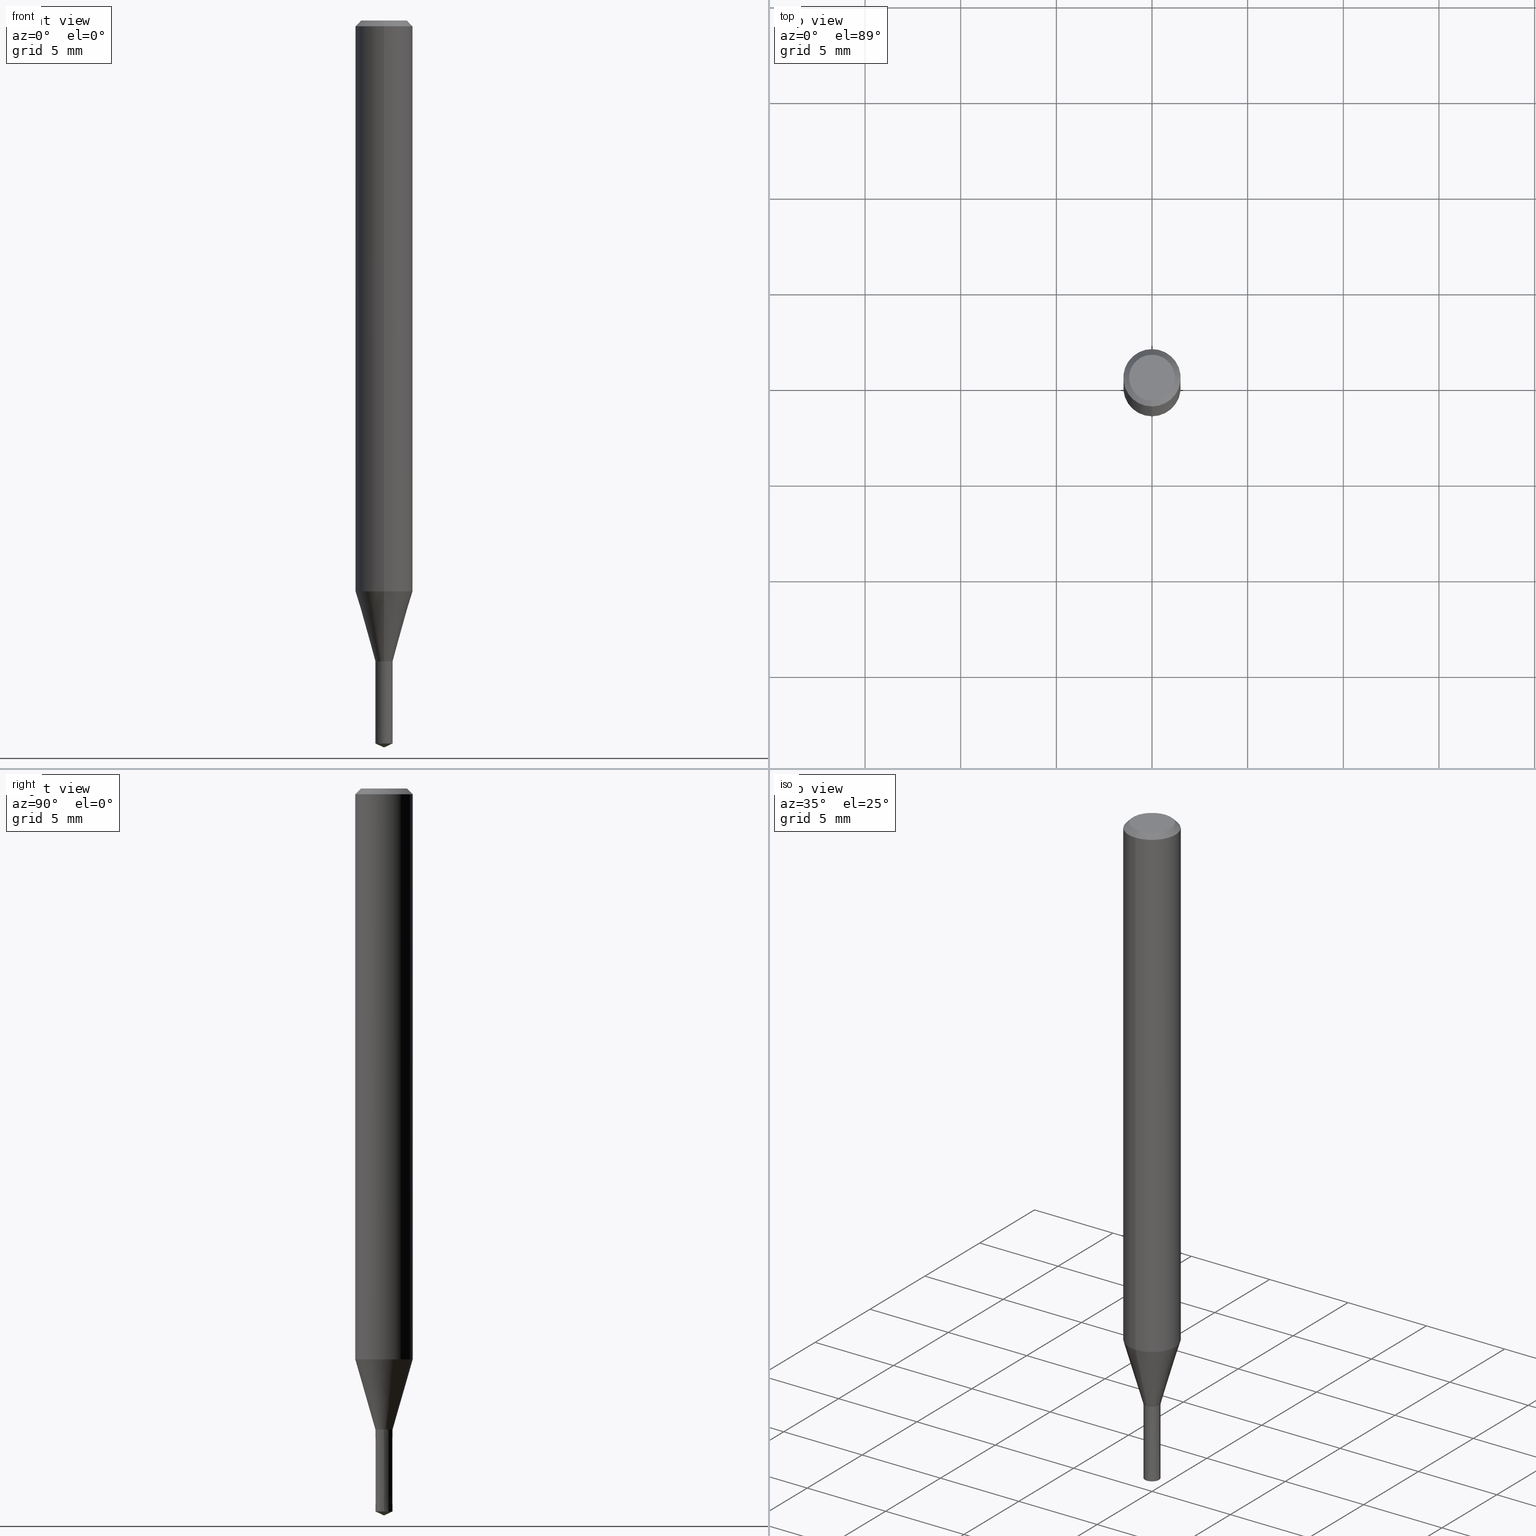
[diagram: canonical four-view strip — front | top / right | iso, engineering-drawing reading convention]
A machine part, canonical four-view strip (front | top / right | iso — engineering-drawing reading convention). The complete STEP part file that produces these views, byte-faithful:
ISO-10303-21;
HEADER;
FILE_DESCRIPTION(('no description'),'unknown implementation level');
FILE_NAME('UTDSX2090-045-Huellk.stp','  ',('CIMSOURCE GmbH'),('CADClick - KiM GmbH - www.kimweb.de'),'unknown preprocess','ACIS','unknown authorization');
FILE_SCHEMA(('automotive_design'));
ENDSEC;
DATA;
#1=MECHANICAL_DESIGN_GEOMETRIC_PRESENTATION_REPRESENTATION(' ',(#14,#15,#16,#17,#18,#19,#20,#21,#22,#23,#24,#25,#26,#27,#28,#29,#30,#31,#32,#33,#34,#35,#36,#37,#38,#39,#40,#41,#42,#43,#44,#45,#46,#47,#48,#49,#50,#51,#52,#53,#54,#55,#56,#57,#58,#59,#60,#61,#62,#63,#64,#65,#66,#67,#68,#69,#70,#71),#10);
#2=PRODUCT_DEFINITION_CONTEXT('',#72,'design');
#3=APPLICATION_PROTOCOL_DEFINITION('INTERNATIONAL STANDARD','automotive_design',1994,#72);
#4=PRODUCT_CATEGORY_RELATIONSHIP('NONE','NONE',#73,#74);
#5=SHAPE_DEFINITION_REPRESENTATION(#75,#76);
#6=PRODUCT_DEFINITION_CONTEXT('',#77,'design');
#7=APPLICATION_PROTOCOL_DEFINITION('INTERNATIONAL STANDARD','automotive_design',1994,#77);
#8=PRODUCT_CATEGORY_RELATIONSHIP('NONE','NONE',#78,#79);
#9=SHAPE_DEFINITION_REPRESENTATION(#80,#81);
#10= (GEOMETRIC_REPRESENTATION_CONTEXT(3)GLOBAL_UNCERTAINTY_ASSIGNED_CONTEXT((#84))GLOBAL_UNIT_ASSIGNED_CONTEXT((#86,#87,#88))REPRESENTATION_CONTEXT('NONE','WORKSPACE'));
#14=STYLED_ITEM('',(#90),#91);
#15=STYLED_ITEM('',(#92),#93);
#16=STYLED_ITEM('',(#94),#95);
#17=STYLED_ITEM('',(#96),#97);
#18=STYLED_ITEM('',(#98),#99);
#19=STYLED_ITEM('',(#100),#101);
#20=STYLED_ITEM('',(#102),#103);
#21=STYLED_ITEM('',(#104),#105);
#22=STYLED_ITEM('',(#106),#107);
#23=STYLED_ITEM('',(#108),#109);
#24=STYLED_ITEM('',(#110),#111);
#25=STYLED_ITEM('',(#112),#113);
#26=STYLED_ITEM('',(#114),#115);
#27=STYLED_ITEM('',(#116),#117);
#28=STYLED_ITEM('',(#118),#119);
#29=STYLED_ITEM('',(#120),#121);
#30=STYLED_ITEM('',(#122),#123);
#31=STYLED_ITEM('',(#124),#125);
#32=STYLED_ITEM('',(#126),#127);
#33=STYLED_ITEM('',(#128),#129);
#34=STYLED_ITEM('',(#130),#131);
#35=STYLED_ITEM('',(#132),#133);
#36=STYLED_ITEM('',(#134),#135);
#37=STYLED_ITEM('',(#136),#137);
#38=STYLED_ITEM('',(#138),#139);
#39=STYLED_ITEM('',(#140),#141);
#40=STYLED_ITEM('',(#142),#143);
#41=STYLED_ITEM('',(#144),#145);
#42=STYLED_ITEM('',(#146),#147);
#43=STYLED_ITEM('',(#148),#149);
#44=STYLED_ITEM('',(#150),#151);
#45=STYLED_ITEM('',(#152),#153);
#46=STYLED_ITEM('',(#154),#155);
#47=STYLED_ITEM('',(#156),#157);
#48=STYLED_ITEM('',(#158),#159);
#49=STYLED_ITEM('',(#160),#161);
#50=STYLED_ITEM('',(#162),#163);
#51=STYLED_ITEM('',(#164),#165);
#52=STYLED_ITEM('',(#166),#167);
#53=STYLED_ITEM('',(#168),#169);
#54=STYLED_ITEM('',(#170),#171);
#55=STYLED_ITEM('',(#172),#173);
#56=STYLED_ITEM('',(#174),#175);
#57=STYLED_ITEM('',(#176),#177);
#58=STYLED_ITEM('',(#178),#179);
#59=STYLED_ITEM('',(#180),#181);
#60=STYLED_ITEM('',(#182),#183);
#61=STYLED_ITEM('',(#184),#185);
#62=STYLED_ITEM('',(#186),#187);
#63=STYLED_ITEM('',(#188),#189);
#64=STYLED_ITEM('',(#190),#191);
#65=STYLED_ITEM('',(#192),#193);
#66=STYLED_ITEM('',(#194),#195);
#67=STYLED_ITEM('',(#196),#197);
#68=STYLED_ITEM('',(#198),#199);
#69=STYLED_ITEM('',(#200),#201);
#70=STYLED_ITEM('',(#202),#203);
#71=STYLED_ITEM('',(#204),#205);
#72=APPLICATION_CONTEXT(' ');
#73=PRODUCT_CATEGORY('part','NONE');
#74=PRODUCT_RELATED_PRODUCT_CATEGORY('detail',' ',(#206));
#75=PRODUCT_DEFINITION_SHAPE('NONE','NONE',#207);
#76=ADVANCED_BREP_SHAPE_REPRESENTATION('1',(#99,#208),#10);
#77=APPLICATION_CONTEXT(' ');
#78=PRODUCT_CATEGORY('part','NONE');
#79=PRODUCT_RELATED_PRODUCT_CATEGORY('detail',' ',(#209));
#80=PRODUCT_DEFINITION_SHAPE('NONE','NONE',#210);
#81=ADVANCED_BREP_SHAPE_REPRESENTATION('2',(#143,#211),#10);
#84=UNCERTAINTY_MEASURE_WITH_UNIT(LENGTH_MEASURE(1.0E-006),#86,'','');
#86= (CONVERSION_BASED_UNIT('MILLIMETRE',#214)LENGTH_UNIT()NAMED_UNIT(#217));
#87= (NAMED_UNIT(#219)PLANE_ANGLE_UNIT()SI_UNIT($,.RADIAN.));
#88= (NAMED_UNIT(#219)SOLID_ANGLE_UNIT()SI_UNIT($,.STERADIAN.));
#90=PRESENTATION_STYLE_ASSIGNMENT((#225));
#91=VERTEX_POINT('',#226);
#92=PRESENTATION_STYLE_ASSIGNMENT((#227));
#93=EDGE_CURVE('',#191,#115,#228,.T.);
#94=PRESENTATION_STYLE_ASSIGNMENT((#229));
#95=EDGE_CURVE('',#191,#105,#230,.T.);
#96=PRESENTATION_STYLE_ASSIGNMENT((#231));
#97=VERTEX_POINT('',#232);
#98=PRESENTATION_STYLE_ASSIGNMENT((#233));
#99=MANIFOLD_SOLID_BREP('1',#234);
#100=PRESENTATION_STYLE_ASSIGNMENT((#235));
#101=EDGE_CURVE('',#125,#145,#236,.T.);
#102=PRESENTATION_STYLE_ASSIGNMENT((#237));
#103=EDGE_CURVE('',#105,#191,#238,.T.);
#104=PRESENTATION_STYLE_ASSIGNMENT((#239));
#105=VERTEX_POINT('',#240);
#106=PRESENTATION_STYLE_ASSIGNMENT((#241));
#107=EDGE_CURVE('',#97,#123,#242,.T.);
#108=PRESENTATION_STYLE_ASSIGNMENT((#243));
#109=VERTEX_POINT('',#244);
#110=PRESENTATION_STYLE_ASSIGNMENT((#245));
#111=EDGE_CURVE('',#115,#189,#246,.T.);
#112=PRESENTATION_STYLE_ASSIGNMENT((#247));
#113=EDGE_CURVE('',#123,#167,#248,.T.);
#114=PRESENTATION_STYLE_ASSIGNMENT((#249));
#115=VERTEX_POINT('',#250);
#116=PRESENTATION_STYLE_ASSIGNMENT((#251));
#117=EDGE_CURVE('',#167,#123,#252,.T.);
#118=PRESENTATION_STYLE_ASSIGNMENT((#253));
#119=ADVANCED_FACE('',(#254),#255,.T.);
#120=PRESENTATION_STYLE_ASSIGNMENT((#256));
#121=ADVANCED_FACE('',(#257),#258,.T.);
#122=PRESENTATION_STYLE_ASSIGNMENT((#259));
#123=VERTEX_POINT('',#260);
#124=PRESENTATION_STYLE_ASSIGNMENT((#261));
#125=VERTEX_POINT('',#262);
#126=PRESENTATION_STYLE_ASSIGNMENT((#263));
#127=EDGE_CURVE('',#125,#141,#264,.T.);
#128=PRESENTATION_STYLE_ASSIGNMENT((#265));
#129=EDGE_CURVE('',#183,#145,#266,.T.);
#130=PRESENTATION_STYLE_ASSIGNMENT((#267));
#131=VERTEX_POINT('',#268);
#132=PRESENTATION_STYLE_ASSIGNMENT((#269));
#133=EDGE_CURVE('',#131,#91,#270,.T.);
#134=PRESENTATION_STYLE_ASSIGNMENT((#271));
#135=ADVANCED_FACE('',(#272),#273,.T.);
#136=PRESENTATION_STYLE_ASSIGNMENT((#274));
#137=ADVANCED_FACE('',(#275),#276,.T.);
#138=PRESENTATION_STYLE_ASSIGNMENT((#277));
#139=EDGE_CURVE('',#153,#109,#278,.T.);
#140=PRESENTATION_STYLE_ASSIGNMENT((#279));
#141=VERTEX_POINT('',#280);
#142=PRESENTATION_STYLE_ASSIGNMENT((#281));
#143=MANIFOLD_SOLID_BREP('2',#282);
#144=PRESENTATION_STYLE_ASSIGNMENT((#283));
#145=VERTEX_POINT('',#284);
#146=PRESENTATION_STYLE_ASSIGNMENT((#285));
#147=EDGE_CURVE('',#141,#125,#286,.T.);
#148=PRESENTATION_STYLE_ASSIGNMENT((#287));
#149=ADVANCED_FACE('',(#288),#289,.T.);
#150=PRESENTATION_STYLE_ASSIGNMENT((#290));
#151=EDGE_CURVE('',#145,#91,#291,.T.);
#152=PRESENTATION_STYLE_ASSIGNMENT((#292));
#153=VERTEX_POINT('',#293);
#154=PRESENTATION_STYLE_ASSIGNMENT((#294));
#155=EDGE_CURVE('',#91,#131,#295,.T.);
#156=PRESENTATION_STYLE_ASSIGNMENT((#296));
#157=ADVANCED_FACE('',(#297),#298,.T.);
#158=PRESENTATION_STYLE_ASSIGNMENT((#299));
#159=ADVANCED_FACE('',(#300),#301,.T.);
#160=PRESENTATION_STYLE_ASSIGNMENT((#302));
#161=EDGE_CURVE('',#183,#141,#303,.T.);
#162=PRESENTATION_STYLE_ASSIGNMENT((#304));
#163=EDGE_CURVE('',#131,#183,#305,.T.);
#164=PRESENTATION_STYLE_ASSIGNMENT((#306));
#165=ADVANCED_FACE('',(#307),#308,.T.);
#166=PRESENTATION_STYLE_ASSIGNMENT((#309));
#167=VERTEX_POINT('',#310);
#168=PRESENTATION_STYLE_ASSIGNMENT((#311));
#169=EDGE_CURVE('',#109,#167,#312,.T.);
#170=PRESENTATION_STYLE_ASSIGNMENT((#313));
#171=EDGE_CURVE('',#189,#115,#314,.T.);
#172=PRESENTATION_STYLE_ASSIGNMENT((#315));
#173=ADVANCED_FACE('',(#316),#317,.T.);
#174=PRESENTATION_STYLE_ASSIGNMENT((#318));
#175=ADVANCED_FACE('',(#319),#320,.T.);
#176=PRESENTATION_STYLE_ASSIGNMENT((#321));
#177=EDGE_CURVE('',#109,#153,#322,.T.);
#178=PRESENTATION_STYLE_ASSIGNMENT((#323));
#179=ADVANCED_FACE('',(#324),#325,.T.);
#180=PRESENTATION_STYLE_ASSIGNMENT((#326));
#181=ADVANCED_FACE('',(#327),#328,.T.);
#182=PRESENTATION_STYLE_ASSIGNMENT((#329));
#183=VERTEX_POINT('',#330);
#184=PRESENTATION_STYLE_ASSIGNMENT((#331));
#185=ADVANCED_FACE('',(#332),#333,.T.);
#186=PRESENTATION_STYLE_ASSIGNMENT((#334));
#187=EDGE_CURVE('',#123,#153,#335,.T.);
#188=PRESENTATION_STYLE_ASSIGNMENT((#336));
#189=VERTEX_POINT('',#337);
#190=PRESENTATION_STYLE_ASSIGNMENT((#338));
#191=VERTEX_POINT('',#339);
#192=PRESENTATION_STYLE_ASSIGNMENT((#340));
#193=ADVANCED_FACE('',(#341),#342,.T.);
#194=PRESENTATION_STYLE_ASSIGNMENT((#343));
#195=EDGE_CURVE('',#141,#189,#344,.T.);
#196=PRESENTATION_STYLE_ASSIGNMENT((#345));
#197=EDGE_CURVE('',#167,#97,#346,.T.);
#198=PRESENTATION_STYLE_ASSIGNMENT((#347));
#199=EDGE_CURVE('',#115,#125,#348,.T.);
#200=PRESENTATION_STYLE_ASSIGNMENT((#349));
#201=EDGE_CURVE('',#145,#183,#350,.T.);
#202=PRESENTATION_STYLE_ASSIGNMENT((#351));
#203=EDGE_CURVE('',#189,#105,#352,.T.);
#204=PRESENTATION_STYLE_ASSIGNMENT((#353));
#205=ADVANCED_FACE('',(#354),#355,.T.);
#206=PRODUCT('1','1','PART-1-DESC',(#356));
#207=PRODUCT_DEFINITION('NONE','NONE',#357,#2);
#208=AXIS2_PLACEMENT_3D('',#358,#359,#360);
#209=PRODUCT('2','2','PART-2-DESC',(#361));
#210=PRODUCT_DEFINITION('NONE','NONE',#362,#6);
#211=AXIS2_PLACEMENT_3D('',#363,#364,#365);
#214=LENGTH_MEASURE_WITH_UNIT(LENGTH_MEASURE(1.0),#366);
#217=DIMENSIONAL_EXPONENTS(1.0,0.0,0.0,0.0,0.0,0.0,0.0);
#219=DIMENSIONAL_EXPONENTS(0.0,0.0,0.0,0.0,0.0,0.0,0.0);
#225=POINT_STYLE(' ',#367,POSITIVE_LENGTH_MEASURE(1.0E-006),#368);
#226=CARTESIAN_POINT('',(0.0,0.4505,-33.5));
#227=CURVE_STYLE('',#369,POSITIVE_LENGTH_MEASURE(1.0E-006),#370);
#228=LINE('',#371,#372);
#229=CURVE_STYLE('',#373,POSITIVE_LENGTH_MEASURE(1.0E-006),#374);
#230=CIRCLE('',#375,1.2);
#231=POINT_STYLE(' ',#376,POSITIVE_LENGTH_MEASURE(1.0E-006),#377);
#232=CARTESIAN_POINT('',(0.0,0.0,-38.0));
#233=SURFACE_STYLE_USAGE(.BOTH.,#378);
#234=CLOSED_SHELL('',(#157,#135,#181,#193,#205,#149,#185,#137,#173,#121));
#235=CURVE_STYLE('',#379,POSITIVE_LENGTH_MEASURE(1.0E-006),#380);
#236=LINE('',#381,#382);
#237=CURVE_STYLE('',#383,POSITIVE_LENGTH_MEASURE(1.0E-006),#384);
#238=CIRCLE('',#385,1.2);
#239=POINT_STYLE(' ',#386,POSITIVE_LENGTH_MEASURE(1.0E-006),#387);
#240=CARTESIAN_POINT('',(1.46952762458685E-016,-1.2,0.0));
#241=CURVE_STYLE('',#388,POSITIVE_LENGTH_MEASURE(1.0E-006),#389);
#242=LINE('',#390,#391);
#243=POINT_STYLE(' ',#392,POSITIVE_LENGTH_MEASURE(1.0E-006),#393);
#244=CARTESIAN_POINT('',(-0.451,0.0,-33.5));
#245=CURVE_STYLE('',#394,POSITIVE_LENGTH_MEASURE(1.0E-006),#395);
#246=CIRCLE('',#396,1.5);
#247=CURVE_STYLE('',#397,POSITIVE_LENGTH_MEASURE(1.0E-006),#398);
#248=CIRCLE('',#399,0.45);
#249=POINT_STYLE(' ',#400,POSITIVE_LENGTH_MEASURE(1.0E-006),#401);
#250=CARTESIAN_POINT('',(0.0,1.5,-0.300000000000001));
#251=CURVE_STYLE('',#402,POSITIVE_LENGTH_MEASURE(1.0E-006),#403);
#252=CIRCLE('',#404,0.45);
#253=SURFACE_STYLE_USAGE(.BOTH.,#405);
#254=FACE_OUTER_BOUND('',#406,.T.);
#255=CONICAL_SURFACE('',#407,0.4505,0.000233091451274011);
#256=SURFACE_STYLE_USAGE(.BOTH.,#408);
#257=FACE_OUTER_BOUND('',#409,.T.);
#258=PLANE('',#410);
#259=POINT_STYLE(' ',#411,POSITIVE_LENGTH_MEASURE(1.0E-006),#412);
#260=CARTESIAN_POINT('',(0.45,5.5107285922007E-017,-37.79016155));
#261=POINT_STYLE(' ',#413,POSITIVE_LENGTH_MEASURE(1.0E-006),#414);
#262=CARTESIAN_POINT('',(0.0,1.5,-29.838));
#263=CURVE_STYLE('',#415,POSITIVE_LENGTH_MEASURE(1.0E-006),#416);
#264=CIRCLE('',#417,1.5);
#265=CURVE_STYLE('',#418,POSITIVE_LENGTH_MEASURE(1.0E-006),#419);
#266=CIRCLE('',#420,0.45);
#267=POINT_STYLE(' ',#421,POSITIVE_LENGTH_MEASURE(1.0E-006),#422);
#268=CARTESIAN_POINT('',(5.51685162396981E-017,-0.4505,-33.5));
#269=CURVE_STYLE('',#423,POSITIVE_LENGTH_MEASURE(1.0E-006),#424);
#270=CIRCLE('',#425,0.4505);
#271=SURFACE_STYLE_USAGE(.BOTH.,#426);
#272=FACE_OUTER_BOUND('',#427,.T.);
#273=CONICAL_SURFACE('',#428,0.975,0.27929980700525);
#274=SURFACE_STYLE_USAGE(.BOTH.,#429);
#275=FACE_OUTER_BOUND('',#430,.T.);
#276=CONICAL_SURFACE('',#431,0.975,0.27929980700525);
#277=CURVE_STYLE('',#432,POSITIVE_LENGTH_MEASURE(1.0E-006),#433);
#278=CIRCLE('',#434,0.451);
#279=POINT_STYLE(' ',#435,POSITIVE_LENGTH_MEASURE(1.0E-006),#436);
#280=CARTESIAN_POINT('',(1.83690953073357E-016,-1.5,-29.838));
#281=SURFACE_STYLE_USAGE(.BOTH.,#437);
#282=CLOSED_SHELL('',(#159,#179,#165,#119,#175));
#283=POINT_STYLE(' ',#438,POSITIVE_LENGTH_MEASURE(1.0E-006),#439);
#284=CARTESIAN_POINT('',(0.0,0.45,-33.4991339745962));
#285=CURVE_STYLE('',#440,POSITIVE_LENGTH_MEASURE(1.0E-006),#441);
#286=CIRCLE('',#442,1.5);
#287=SURFACE_STYLE_USAGE(.BOTH.,#443);
#288=FACE_OUTER_BOUND('',#444,.T.);
#289=CONICAL_SURFACE('',#445,1.35,0.785398163397447);
#290=CURVE_STYLE('',#446,POSITIVE_LENGTH_MEASURE(1.0E-006),#447);
#291=LINE('',#448,#449);
#292=POINT_STYLE(' ',#450,POSITIVE_LENGTH_MEASURE(1.0E-006),#451);
#293=CARTESIAN_POINT('',(0.451,5.52297465573892E-017,-33.5));
#294=CURVE_STYLE('',#452,POSITIVE_LENGTH_MEASURE(1.0E-006),#453);
#295=CIRCLE('',#454,0.4505);
#296=SURFACE_STYLE_USAGE(.BOTH.,#455);
#297=FACE_OUTER_BOUND('',#456,.T.);
#298=CONICAL_SURFACE('',#457,0.45025,0.523598775598408);
#299=SURFACE_STYLE_USAGE(.BOTH.,#458);
#300=FACE_OUTER_BOUND('',#459,.T.);
#301=CONICAL_SURFACE('',#460,0.225,1.13446400680488);
#302=CURVE_STYLE('',#461,POSITIVE_LENGTH_MEASURE(1.0E-006),#462);
#303=LINE('',#463,#464);
#304=CURVE_STYLE('',#465,POSITIVE_LENGTH_MEASURE(1.0E-006),#466);
#305=LINE('',#467,#468);
#306=SURFACE_STYLE_USAGE(.BOTH.,#469);
#307=FACE_OUTER_BOUND('',#470,.T.);
#308=PLANE('',#471);
#309=POINT_STYLE(' ',#472,POSITIVE_LENGTH_MEASURE(1.0E-006),#473);
#310=CARTESIAN_POINT('',(-0.45,0.0,-37.79016155));
#311=CURVE_STYLE('',#474,POSITIVE_LENGTH_MEASURE(1.0E-006),#475);
#312=LINE('',#476,#477);
#313=CURVE_STYLE('',#478,POSITIVE_LENGTH_MEASURE(1.0E-006),#479);
#314=CIRCLE('',#480,1.5);
#315=SURFACE_STYLE_USAGE(.BOTH.,#481);
#316=FACE_OUTER_BOUND('',#482,.T.);
#317=CONICAL_SURFACE('',#483,0.45025,0.523598775598408);
#318=SURFACE_STYLE_USAGE(.BOTH.,#484);
#319=FACE_OUTER_BOUND('',#485,.T.);
#320=CONICAL_SURFACE('',#486,0.225,1.13446400680488);
#321=CURVE_STYLE('',#487,POSITIVE_LENGTH_MEASURE(1.0E-006),#488);
#322=CIRCLE('',#489,0.451);
#323=SURFACE_STYLE_USAGE(.BOTH.,#490);
#324=FACE_OUTER_BOUND('',#491,.T.);
#325=CONICAL_SURFACE('',#492,0.4505,0.000233091451274011);
#326=SURFACE_STYLE_USAGE(.BOTH.,#493);
#327=FACE_OUTER_BOUND('',#494,.T.);
#328=CYLINDRICAL_SURFACE('',#495,1.5);
#329=POINT_STYLE(' ',#496,POSITIVE_LENGTH_MEASURE(1.0E-006),#497);
#330=CARTESIAN_POINT('',(5.5107285922007E-017,-0.45,-33.4991339745962));
#331=SURFACE_STYLE_USAGE(.BOTH.,#498);
#332=FACE_OUTER_BOUND('',#499,.T.);
#333=CYLINDRICAL_SURFACE('',#500,1.5);
#334=CURVE_STYLE('',#501,POSITIVE_LENGTH_MEASURE(1.0E-006),#502);
#335=LINE('',#503,#504);
#336=POINT_STYLE(' ',#505,POSITIVE_LENGTH_MEASURE(1.0E-006),#506);
#337=CARTESIAN_POINT('',(1.83690953073357E-016,-1.5,-0.300000000000001));
#338=POINT_STYLE(' ',#507,POSITIVE_LENGTH_MEASURE(1.0E-006),#508);
#339=CARTESIAN_POINT('',(0.0,1.2,0.0));
#340=SURFACE_STYLE_USAGE(.BOTH.,#509);
#341=FACE_OUTER_BOUND('',#510,.T.);
#342=CONICAL_SURFACE('',#511,1.35,0.785398163397447);
#343=CURVE_STYLE('',#512,POSITIVE_LENGTH_MEASURE(1.0E-006),#513);
#344=LINE('',#514,#515);
#345=CURVE_STYLE('',#516,POSITIVE_LENGTH_MEASURE(1.0E-006),#517);
#346=LINE('',#518,#519);
#347=CURVE_STYLE('',#520,POSITIVE_LENGTH_MEASURE(1.0E-006),#521);
#348=LINE('',#522,#523);
#349=CURVE_STYLE('',#524,POSITIVE_LENGTH_MEASURE(1.0E-006),#525);
#350=CIRCLE('',#526,0.45);
#351=CURVE_STYLE('',#527,POSITIVE_LENGTH_MEASURE(1.0E-006),#528);
#352=LINE('',#529,#530);
#353=SURFACE_STYLE_USAGE(.BOTH.,#531);
#354=FACE_OUTER_BOUND('',#532,.T.);
#355=PLANE('',#533);
#356=PRODUCT_CONTEXT('',#72,'mechanical');
#357=PRODUCT_DEFINITION_FORMATION_WITH_SPECIFIED_SOURCE(' ','NONE',#206,.NOT_KNOWN.);
#358=CARTESIAN_POINT('',(0.0,0.0,0.0));
#359=DIRECTION('',(0.0,0.0,1.0));
#360=DIRECTION('',(1.0,0.0,0.0));
#361=PRODUCT_CONTEXT('',#77,'mechanical');
#362=PRODUCT_DEFINITION_FORMATION_WITH_SPECIFIED_SOURCE(' ','NONE',#209,.NOT_KNOWN.);
#363=CARTESIAN_POINT('',(0.0,0.0,0.0));
#364=DIRECTION('',(0.0,0.0,1.0));
#365=DIRECTION('',(1.0,0.0,0.0));
#366= (NAMED_UNIT(#217)LENGTH_UNIT()SI_UNIT(.MILLI.,.METRE.));
#367=PRE_DEFINED_MARKER('');
#368=COLOUR_RGB('',0.498039215803146,0.498039215803146,0.498039215803146);
#369=DRAUGHTING_PRE_DEFINED_CURVE_FONT('continuous');
#370=COLOUR_RGB('',0.498039215803146,0.498039215803146,0.498039215803146);
#371=CARTESIAN_POINT('',(-1.65321857766021E-016,1.35,-0.149999999999999));
#372=VECTOR('',#535,1.0);
#373=DRAUGHTING_PRE_DEFINED_CURVE_FONT('continuous');
#374=COLOUR_RGB('',0.498039215803146,0.498039215803146,0.498039215803146);
#375=AXIS2_PLACEMENT_3D('',#536,#537,#538);
#376=PRE_DEFINED_MARKER('');
#377=COLOUR_RGB('',0.800000011920929,0.800000011920929,0.800000011920929);
#378=SURFACE_SIDE_STYLE('',(#539));
#379=DRAUGHTING_PRE_DEFINED_CURVE_FONT('continuous');
#380=COLOUR_RGB('',0.498039215803146,0.498039215803146,0.498039215803146);
#381=CARTESIAN_POINT('',(-1.19399119497682E-016,0.975,-31.6685669872981));
#382=VECTOR('',#540,1.0);
#383=DRAUGHTING_PRE_DEFINED_CURVE_FONT('continuous');
#384=COLOUR_RGB('',0.498039215803146,0.498039215803146,0.498039215803146);
#385=AXIS2_PLACEMENT_3D('',#541,#542,#543);
#386=PRE_DEFINED_MARKER('');
#387=COLOUR_RGB('',0.498039215803146,0.498039215803146,0.498039215803146);
#388=DRAUGHTING_PRE_DEFINED_CURVE_FONT('continuous');
#389=COLOUR_RGB('',0.800000011920929,0.800000011920929,0.800000011920929);
#390=CARTESIAN_POINT('',(0.225,2.75536429610035E-017,-37.895080775));
#391=VECTOR('',#544,1.0);
#392=PRE_DEFINED_MARKER('');
#393=COLOUR_RGB('',0.800000011920929,0.800000011920929,0.800000011920929);
#394=DRAUGHTING_PRE_DEFINED_CURVE_FONT('continuous');
#395=COLOUR_RGB('',0.498039215803146,0.498039215803146,0.498039215803146);
#396=AXIS2_PLACEMENT_3D('',#545,#546,#547);
#397=DRAUGHTING_PRE_DEFINED_CURVE_FONT('continuous');
#398=COLOUR_RGB('',0.800000011920929,0.800000011920929,0.800000011920929);
#399=AXIS2_PLACEMENT_3D('',#548,#549,#550);
#400=PRE_DEFINED_MARKER('');
#401=COLOUR_RGB('',0.498039215803146,0.498039215803146,0.498039215803146);
#402=DRAUGHTING_PRE_DEFINED_CURVE_FONT('continuous');
#403=COLOUR_RGB('',0.800000011920929,0.800000011920929,0.800000011920929);
#404=AXIS2_PLACEMENT_3D('',#551,#552,#553);
#405=SURFACE_SIDE_STYLE('',(#554));
#406=EDGE_LOOP('',(#555,#556,#557,#558));
#407=AXIS2_PLACEMENT_3D('',#559,#560,#561);
#408=SURFACE_SIDE_STYLE('',(#562));
#409=EDGE_LOOP('',(#563,#564));
#410=AXIS2_PLACEMENT_3D('',#565,#566,#567);
#411=PRE_DEFINED_MARKER('');
#412=COLOUR_RGB('',0.800000011920929,0.800000011920929,0.800000011920929);
#413=PRE_DEFINED_MARKER('');
#414=COLOUR_RGB('',0.498039215803146,0.498039215803146,0.498039215803146);
#415=DRAUGHTING_PRE_DEFINED_CURVE_FONT('continuous');
#416=COLOUR_RGB('',0.498039215803146,0.498039215803146,0.498039215803146);
#417=AXIS2_PLACEMENT_3D('',#568,#569,#570);
#418=DRAUGHTING_PRE_DEFINED_CURVE_FONT('continuous');
#419=COLOUR_RGB('',0.498039215803146,0.498039215803146,0.498039215803146);
#420=AXIS2_PLACEMENT_3D('',#571,#572,#573);
#421=PRE_DEFINED_MARKER('');
#422=COLOUR_RGB('',0.498039215803146,0.498039215803146,0.498039215803146);
#423=DRAUGHTING_PRE_DEFINED_CURVE_FONT('continuous');
#424=COLOUR_RGB('',0.498039215803146,0.498039215803146,0.498039215803146);
#425=AXIS2_PLACEMENT_3D('',#574,#575,#576);
#426=SURFACE_SIDE_STYLE('',(#577));
#427=EDGE_LOOP('',(#578,#579,#580,#581));
#428=AXIS2_PLACEMENT_3D('',#582,#583,#584);
#429=SURFACE_SIDE_STYLE('',(#585));
#430=EDGE_LOOP('',(#586,#587,#588,#589));
#431=AXIS2_PLACEMENT_3D('',#590,#591,#592);
#432=DRAUGHTING_PRE_DEFINED_CURVE_FONT('continuous');
#433=COLOUR_RGB('',0.800000011920929,0.800000011920929,0.800000011920929);
#434=AXIS2_PLACEMENT_3D('',#593,#594,#595);
#435=PRE_DEFINED_MARKER('');
#436=COLOUR_RGB('',0.498039215803146,0.498039215803146,0.498039215803146);
#437=SURFACE_SIDE_STYLE('',(#596));
#438=PRE_DEFINED_MARKER('');
#439=COLOUR_RGB('',0.498039215803146,0.498039215803146,0.498039215803146);
#440=DRAUGHTING_PRE_DEFINED_CURVE_FONT('continuous');
#441=COLOUR_RGB('',0.498039215803146,0.498039215803146,0.498039215803146);
#442=AXIS2_PLACEMENT_3D('',#597,#598,#599);
#443=SURFACE_SIDE_STYLE('',(#600));
#444=EDGE_LOOP('',(#601,#602,#603,#604));
#445=AXIS2_PLACEMENT_3D('',#605,#606,#607);
#446=DRAUGHTING_PRE_DEFINED_CURVE_FONT('continuous');
#447=COLOUR_RGB('',0.498039215803146,0.498039215803146,0.498039215803146);
#448=CARTESIAN_POINT('',(-5.51379010808525E-017,0.45025,-33.4995669872981));
#449=VECTOR('',#608,1.0);
#450=PRE_DEFINED_MARKER('');
#451=COLOUR_RGB('',0.800000011920929,0.800000011920929,0.800000011920929);
#452=DRAUGHTING_PRE_DEFINED_CURVE_FONT('continuous');
#453=COLOUR_RGB('',0.498039215803146,0.498039215803146,0.498039215803146);
#454=AXIS2_PLACEMENT_3D('',#609,#610,#611);
#455=SURFACE_SIDE_STYLE('',(#612));
#456=EDGE_LOOP('',(#613,#614,#615,#616));
#457=AXIS2_PLACEMENT_3D('',#617,#618,#619);
#458=SURFACE_SIDE_STYLE('',(#620));
#459=EDGE_LOOP('',(#621,#622,#623));
#460=AXIS2_PLACEMENT_3D('',#624,#625,#626);
#461=DRAUGHTING_PRE_DEFINED_CURVE_FONT('continuous');
#462=COLOUR_RGB('',0.498039215803146,0.498039215803146,0.498039215803146);
#463=CARTESIAN_POINT('',(1.19399119497682E-016,-0.975,-31.6685669872981));
#464=VECTOR('',#627,1.0);
#465=DRAUGHTING_PRE_DEFINED_CURVE_FONT('continuous');
#466=COLOUR_RGB('',0.498039215803146,0.498039215803146,0.498039215803146);
#467=CARTESIAN_POINT('',(5.51379010808525E-017,-0.45025,-33.4995669872981));
#468=VECTOR('',#628,1.0);
#469=SURFACE_SIDE_STYLE('',(#629));
#470=EDGE_LOOP('',(#630,#631));
#471=AXIS2_PLACEMENT_3D('',#632,#633,#634);
#472=PRE_DEFINED_MARKER('');
#473=COLOUR_RGB('',0.800000011920929,0.800000011920929,0.800000011920929);
#474=DRAUGHTING_PRE_DEFINED_CURVE_FONT('continuous');
#475=COLOUR_RGB('',0.800000011920929,0.800000011920929,0.800000011920929);
#476=CARTESIAN_POINT('',(-0.4505,-5.51685162396981E-017,-35.645080775));
#477=VECTOR('',#635,1.0);
#478=DRAUGHTING_PRE_DEFINED_CURVE_FONT('continuous');
#479=COLOUR_RGB('',0.498039215803146,0.498039215803146,0.498039215803146);
#480=AXIS2_PLACEMENT_3D('',#636,#637,#638);
#481=SURFACE_SIDE_STYLE('',(#639));
#482=EDGE_LOOP('',(#640,#641,#642,#643));
#483=AXIS2_PLACEMENT_3D('',#644,#645,#646);
#484=SURFACE_SIDE_STYLE('',(#647));
#485=EDGE_LOOP('',(#648,#649,#650));
#486=AXIS2_PLACEMENT_3D('',#651,#652,#653);
#487=DRAUGHTING_PRE_DEFINED_CURVE_FONT('continuous');
#488=COLOUR_RGB('',0.800000011920929,0.800000011920929,0.800000011920929);
#489=AXIS2_PLACEMENT_3D('',#654,#655,#656);
#490=SURFACE_SIDE_STYLE('',(#657));
#491=EDGE_LOOP('',(#658,#659,#660,#661));
#492=AXIS2_PLACEMENT_3D('',#662,#663,#664);
#493=SURFACE_SIDE_STYLE('',(#665));
#494=EDGE_LOOP('',(#666,#667,#668,#669));
#495=AXIS2_PLACEMENT_3D('',#670,#671,#672);
#496=PRE_DEFINED_MARKER('');
#497=COLOUR_RGB('',0.498039215803146,0.498039215803146,0.498039215803146);
#498=SURFACE_SIDE_STYLE('',(#673));
#499=EDGE_LOOP('',(#674,#675,#676,#677));
#500=AXIS2_PLACEMENT_3D('',#678,#679,#680);
#501=DRAUGHTING_PRE_DEFINED_CURVE_FONT('continuous');
#502=COLOUR_RGB('',0.800000011920929,0.800000011920929,0.800000011920929);
#503=CARTESIAN_POINT('',(0.4505,5.51685162396981E-017,-35.645080775));
#504=VECTOR('',#681,1.0);
#505=PRE_DEFINED_MARKER('');
#506=COLOUR_RGB('',0.498039215803146,0.498039215803146,0.498039215803146);
#507=PRE_DEFINED_MARKER('');
#508=COLOUR_RGB('',0.498039215803146,0.498039215803146,0.498039215803146);
#509=SURFACE_SIDE_STYLE('',(#682));
#510=EDGE_LOOP('',(#683,#684,#685,#686));
#511=AXIS2_PLACEMENT_3D('',#687,#688,#689);
#512=DRAUGHTING_PRE_DEFINED_CURVE_FONT('continuous');
#513=COLOUR_RGB('',0.498039215803146,0.498039215803146,0.498039215803146);
#514=CARTESIAN_POINT('',(1.83690953073357E-016,-1.5,-15.069));
#515=VECTOR('',#690,1.0);
#516=DRAUGHTING_PRE_DEFINED_CURVE_FONT('continuous');
#517=COLOUR_RGB('',0.800000011920929,0.800000011920929,0.800000011920929);
#518=CARTESIAN_POINT('',(-0.225,-2.75536429610035E-017,-37.895080775));
#519=VECTOR('',#691,1.0);
#520=DRAUGHTING_PRE_DEFINED_CURVE_FONT('continuous');
#521=COLOUR_RGB('',0.498039215803146,0.498039215803146,0.498039215803146);
#522=CARTESIAN_POINT('',(-1.83690953073357E-016,1.5,-15.069));
#523=VECTOR('',#692,1.0);
#524=DRAUGHTING_PRE_DEFINED_CURVE_FONT('continuous');
#525=COLOUR_RGB('',0.498039215803146,0.498039215803146,0.498039215803146);
#526=AXIS2_PLACEMENT_3D('',#693,#694,#695);
#527=DRAUGHTING_PRE_DEFINED_CURVE_FONT('continuous');
#528=COLOUR_RGB('',0.498039215803146,0.498039215803146,0.498039215803146);
#529=CARTESIAN_POINT('',(1.65321857766021E-016,-1.35,-0.149999999999999));
#530=VECTOR('',#696,1.0);
#531=SURFACE_SIDE_STYLE('',(#697));
#532=EDGE_LOOP('',(#698,#699));
#533=AXIS2_PLACEMENT_3D('',#700,#701,#702);
#535=DIRECTION('',(-8.65927457071934E-017,0.707106781186546,-0.707106781186549));
#536=CARTESIAN_POINT('',(0.0,0.0,0.0));
#537=DIRECTION('',(0.0,0.0,-1.0));
#538=DIRECTION('',(0.0,1.0,0.0));
#539=SURFACE_STYLE_FILL_AREA(#703);
#540=DIRECTION('',(3.37602732897714E-017,-0.275682656589157,-0.961248704995718));
#541=CARTESIAN_POINT('',(0.0,0.0,0.0));
#542=DIRECTION('',(0.0,0.0,-1.0));
#543=DIRECTION('',(0.0,1.0,0.0));
#544=DIRECTION('',(0.906307784081943,1.10987027090543E-016,0.422618268077089));
#545=CARTESIAN_POINT('',(0.0,0.0,-0.300000000000001));
#546=DIRECTION('',(0.0,0.0,-1.0));
#547=DIRECTION('',(0.0,1.0,0.0));
#548=CARTESIAN_POINT('',(0.0,0.0,-37.79016155));
#549=DIRECTION('',(0.0,0.0,-1.0));
#550=DIRECTION('',(-1.0,0.0,0.0));
#551=CARTESIAN_POINT('',(0.0,0.0,-37.79016155));
#552=DIRECTION('',(0.0,0.0,-1.0));
#553=DIRECTION('',(-1.0,0.0,0.0));
#554=SURFACE_STYLE_FILL_AREA(#704);
#555=ORIENTED_EDGE('',*,*,#169,.T.);
#556=ORIENTED_EDGE('',*,*,#113,.F.);
#557=ORIENTED_EDGE('',*,*,#187,.T.);
#558=ORIENTED_EDGE('',*,*,#139,.T.);
#559=CARTESIAN_POINT('',(0.0,0.0,-35.645080775));
#560=DIRECTION('',(-0.0,-0.0,1.0));
#561=DIRECTION('',(-1.0,0.0,0.0));
#562=SURFACE_STYLE_FILL_AREA(#705);
#563=ORIENTED_EDGE('',*,*,#155,.T.);
#564=ORIENTED_EDGE('',*,*,#133,.T.);
#565=CARTESIAN_POINT('',(0.0,0.22525,-33.5));
#566=DIRECTION('',(0.0,0.0,-1.0));
#567=DIRECTION('',(0.0,1.0,0.0));
#568=CARTESIAN_POINT('',(0.0,0.0,-29.838));
#569=DIRECTION('',(0.0,0.0,-1.0));
#570=DIRECTION('',(0.0,1.0,0.0));
#571=CARTESIAN_POINT('',(0.0,0.0,-33.4991339745962));
#572=DIRECTION('',(0.0,0.0,-1.0));
#573=DIRECTION('',(0.0,1.0,0.0));
#574=CARTESIAN_POINT('',(0.0,0.0,-33.5));
#575=DIRECTION('',(0.0,0.0,-1.0));
#576=DIRECTION('',(0.0,1.0,0.0));
#577=SURFACE_STYLE_FILL_AREA(#706);
#578=ORIENTED_EDGE('',*,*,#101,.F.);
#579=ORIENTED_EDGE('',*,*,#127,.T.);
#580=ORIENTED_EDGE('',*,*,#161,.F.);
#581=ORIENTED_EDGE('',*,*,#201,.F.);
#582=CARTESIAN_POINT('',(0.0,0.0,-31.6685669872981));
#583=DIRECTION('',(-0.0,-0.0,1.0));
#584=DIRECTION('',(0.0,1.0,0.0));
#585=SURFACE_STYLE_FILL_AREA(#707);
#586=ORIENTED_EDGE('',*,*,#101,.T.);
#587=ORIENTED_EDGE('',*,*,#129,.F.);
#588=ORIENTED_EDGE('',*,*,#161,.T.);
#589=ORIENTED_EDGE('',*,*,#147,.T.);
#590=CARTESIAN_POINT('',(0.0,0.0,-31.6685669872981));
#591=DIRECTION('',(-0.0,-0.0,1.0));
#592=DIRECTION('',(0.0,1.0,0.0));
#593=CARTESIAN_POINT('',(0.0,0.0,-33.5));
#594=DIRECTION('',(0.0,0.0,-1.0));
#595=DIRECTION('',(-1.0,0.0,0.0));
#596=SURFACE_STYLE_FILL_AREA(#708);
#597=CARTESIAN_POINT('',(0.0,0.0,-29.838));
#598=DIRECTION('',(0.0,0.0,-1.0));
#599=DIRECTION('',(0.0,1.0,0.0));
#600=SURFACE_STYLE_FILL_AREA(#709);
#601=ORIENTED_EDGE('',*,*,#93,.T.);
#602=ORIENTED_EDGE('',*,*,#171,.F.);
#603=ORIENTED_EDGE('',*,*,#203,.T.);
#604=ORIENTED_EDGE('',*,*,#103,.T.);
#605=CARTESIAN_POINT('',(0.0,0.0,-0.149999999999999));
#606=DIRECTION('',(0.0,-0.0,-1.0));
#607=DIRECTION('',(0.0,1.0,0.0));
#608=DIRECTION('',(-6.12303176911305E-017,0.500000000000095,-0.866025403784384));
#609=CARTESIAN_POINT('',(0.0,0.0,-33.5));
#610=DIRECTION('',(0.0,0.0,-1.0));
#611=DIRECTION('',(0.0,1.0,0.0));
#612=SURFACE_STYLE_FILL_AREA(#710);
#613=ORIENTED_EDGE('',*,*,#151,.F.);
#614=ORIENTED_EDGE('',*,*,#201,.T.);
#615=ORIENTED_EDGE('',*,*,#163,.F.);
#616=ORIENTED_EDGE('',*,*,#155,.F.);
#617=CARTESIAN_POINT('',(0.0,0.0,-33.4995669872981));
#618=DIRECTION('',(0.0,-0.0,-1.0));
#619=DIRECTION('',(0.0,1.0,0.0));
#620=SURFACE_STYLE_FILL_AREA(#711);
#621=ORIENTED_EDGE('',*,*,#107,.F.);
#622=ORIENTED_EDGE('',*,*,#197,.F.);
#623=ORIENTED_EDGE('',*,*,#117,.T.);
#624=CARTESIAN_POINT('',(0.0,0.0,-37.895080775));
#625=DIRECTION('',(-0.0,-0.0,1.0));
#626=DIRECTION('',(-1.0,0.0,0.0));
#627=DIRECTION('',(3.37602732897714E-017,-0.275682656589157,0.961248704995718));
#628=DIRECTION('',(-6.12303176911305E-017,0.500000000000095,0.866025403784384));
#629=SURFACE_STYLE_FILL_AREA(#712);
#630=ORIENTED_EDGE('',*,*,#177,.F.);
#631=ORIENTED_EDGE('',*,*,#139,.F.);
#632=CARTESIAN_POINT('',(-0.2255,0.0,-33.5));
#633=DIRECTION('',(0.0,0.0,1.0));
#634=DIRECTION('',(1.0,0.0,0.0));
#635=DIRECTION('',(0.000233091449163305,2.85445269667048E-020,-0.999999972834188));
#636=CARTESIAN_POINT('',(0.0,0.0,-0.300000000000001));
#637=DIRECTION('',(0.0,0.0,-1.0));
#638=DIRECTION('',(0.0,1.0,0.0));
#639=SURFACE_STYLE_FILL_AREA(#713);
#640=ORIENTED_EDGE('',*,*,#151,.T.);
#641=ORIENTED_EDGE('',*,*,#133,.F.);
#642=ORIENTED_EDGE('',*,*,#163,.T.);
#643=ORIENTED_EDGE('',*,*,#129,.T.);
#644=CARTESIAN_POINT('',(0.0,0.0,-33.4995669872981));
#645=DIRECTION('',(0.0,-0.0,-1.0));
#646=DIRECTION('',(0.0,1.0,0.0));
#647=SURFACE_STYLE_FILL_AREA(#714);
#648=ORIENTED_EDGE('',*,*,#107,.T.);
#649=ORIENTED_EDGE('',*,*,#113,.T.);
#650=ORIENTED_EDGE('',*,*,#197,.T.);
#651=CARTESIAN_POINT('',(0.0,0.0,-37.895080775));
#652=DIRECTION('',(-0.0,-0.0,1.0));
#653=DIRECTION('',(-1.0,0.0,0.0));
#654=CARTESIAN_POINT('',(0.0,0.0,-33.5));
#655=DIRECTION('',(0.0,0.0,-1.0));
#656=DIRECTION('',(-1.0,0.0,0.0));
#657=SURFACE_STYLE_FILL_AREA(#715);
#658=ORIENTED_EDGE('',*,*,#169,.F.);
#659=ORIENTED_EDGE('',*,*,#177,.T.);
#660=ORIENTED_EDGE('',*,*,#187,.F.);
#661=ORIENTED_EDGE('',*,*,#117,.F.);
#662=CARTESIAN_POINT('',(0.0,0.0,-35.645080775));
#663=DIRECTION('',(-0.0,-0.0,1.0));
#664=DIRECTION('',(-1.0,0.0,0.0));
#665=SURFACE_STYLE_FILL_AREA(#716);
#666=ORIENTED_EDGE('',*,*,#199,.F.);
#667=ORIENTED_EDGE('',*,*,#111,.T.);
#668=ORIENTED_EDGE('',*,*,#195,.F.);
#669=ORIENTED_EDGE('',*,*,#127,.F.);
#670=CARTESIAN_POINT('',(0.0,0.0,-15.069));
#671=DIRECTION('',(-0.0,-0.0,1.0));
#672=DIRECTION('',(0.0,1.0,0.0));
#673=SURFACE_STYLE_FILL_AREA(#717);
#674=ORIENTED_EDGE('',*,*,#199,.T.);
#675=ORIENTED_EDGE('',*,*,#147,.F.);
#676=ORIENTED_EDGE('',*,*,#195,.T.);
#677=ORIENTED_EDGE('',*,*,#171,.T.);
#678=CARTESIAN_POINT('',(0.0,0.0,-15.069));
#679=DIRECTION('',(-0.0,-0.0,1.0));
#680=DIRECTION('',(0.0,1.0,0.0));
#681=DIRECTION('',(0.000233091449163305,2.85445269667048E-020,0.999999972834188));
#682=SURFACE_STYLE_FILL_AREA(#718);
#683=ORIENTED_EDGE('',*,*,#93,.F.);
#684=ORIENTED_EDGE('',*,*,#95,.T.);
#685=ORIENTED_EDGE('',*,*,#203,.F.);
#686=ORIENTED_EDGE('',*,*,#111,.F.);
#687=CARTESIAN_POINT('',(0.0,0.0,-0.149999999999999));
#688=DIRECTION('',(0.0,-0.0,-1.0));
#689=DIRECTION('',(0.0,1.0,0.0));
#690=DIRECTION('',(-0.0,-0.0,1.0));
#691=DIRECTION('',(0.906307784081943,1.10987027090543E-016,-0.422618268077089));
#692=DIRECTION('',(0.0,0.0,-1.0));
#693=CARTESIAN_POINT('',(0.0,0.0,-33.4991339745962));
#694=DIRECTION('',(0.0,0.0,-1.0));
#695=DIRECTION('',(0.0,1.0,0.0));
#696=DIRECTION('',(-8.65927457071934E-017,0.707106781186546,0.707106781186549));
#697=SURFACE_STYLE_FILL_AREA(#719);
#698=ORIENTED_EDGE('',*,*,#95,.F.);
#699=ORIENTED_EDGE('',*,*,#103,.F.);
#700=CARTESIAN_POINT('',(0.0,0.6,0.0));
#701=DIRECTION('',(-0.0,0.0,1.0));
#702=DIRECTION('',(0.0,-1.0,0.0));
#703=FILL_AREA_STYLE('',(#720));
#704=FILL_AREA_STYLE('',(#721));
#705=FILL_AREA_STYLE('',(#722));
#706=FILL_AREA_STYLE('',(#723));
#707=FILL_AREA_STYLE('',(#724));
#708=FILL_AREA_STYLE('',(#725));
#709=FILL_AREA_STYLE('',(#726));
#710=FILL_AREA_STYLE('',(#727));
#711=FILL_AREA_STYLE('',(#728));
#712=FILL_AREA_STYLE('',(#729));
#713=FILL_AREA_STYLE('',(#730));
#714=FILL_AREA_STYLE('',(#731));
#715=FILL_AREA_STYLE('',(#732));
#716=FILL_AREA_STYLE('',(#733));
#717=FILL_AREA_STYLE('',(#734));
#718=FILL_AREA_STYLE('',(#735));
#719=FILL_AREA_STYLE('',(#736));
#720=FILL_AREA_STYLE_COLOUR('',#737);
#721=FILL_AREA_STYLE_COLOUR('',#738);
#722=FILL_AREA_STYLE_COLOUR('',#739);
#723=FILL_AREA_STYLE_COLOUR('',#740);
#724=FILL_AREA_STYLE_COLOUR('',#741);
#725=FILL_AREA_STYLE_COLOUR('',#742);
#726=FILL_AREA_STYLE_COLOUR('',#743);
#727=FILL_AREA_STYLE_COLOUR('',#744);
#728=FILL_AREA_STYLE_COLOUR('',#745);
#729=FILL_AREA_STYLE_COLOUR('',#746);
#730=FILL_AREA_STYLE_COLOUR('',#747);
#731=FILL_AREA_STYLE_COLOUR('',#748);
#732=FILL_AREA_STYLE_COLOUR('',#749);
#733=FILL_AREA_STYLE_COLOUR('',#750);
#734=FILL_AREA_STYLE_COLOUR('',#751);
#735=FILL_AREA_STYLE_COLOUR('',#752);
#736=FILL_AREA_STYLE_COLOUR('',#753);
#737=COLOUR_RGB('',0.498039215803146,0.498039215803146,0.498039215803146);
#738=COLOUR_RGB('',0.800000011920929,0.800000011920929,0.800000011920929);
#739=COLOUR_RGB('',0.498039215803146,0.498039215803146,0.498039215803146);
#740=COLOUR_RGB('',0.498039215803146,0.498039215803146,0.498039215803146);
#741=COLOUR_RGB('',0.498039215803146,0.498039215803146,0.498039215803146);
#742=COLOUR_RGB('',0.800000011920929,0.800000011920929,0.800000011920929);
#743=COLOUR_RGB('',0.498039215803146,0.498039215803146,0.498039215803146);
#744=COLOUR_RGB('',0.498039215803146,0.498039215803146,0.498039215803146);
#745=COLOUR_RGB('',0.800000011920929,0.800000011920929,0.800000011920929);
#746=COLOUR_RGB('',0.800000011920929,0.800000011920929,0.800000011920929);
#747=COLOUR_RGB('',0.498039215803146,0.498039215803146,0.498039215803146);
#748=COLOUR_RGB('',0.800000011920929,0.800000011920929,0.800000011920929);
#749=COLOUR_RGB('',0.800000011920929,0.800000011920929,0.800000011920929);
#750=COLOUR_RGB('',0.498039215803146,0.498039215803146,0.498039215803146);
#751=COLOUR_RGB('',0.498039215803146,0.498039215803146,0.498039215803146);
#752=COLOUR_RGB('',0.498039215803146,0.498039215803146,0.498039215803146);
#753=COLOUR_RGB('',0.498039215803146,0.498039215803146,0.498039215803146);
#754=AXIS2_PLACEMENT_3D('PCS',#755,#756,#757);
#755=CARTESIAN_POINT('',(0.0,0.0,0.0));
#756=DIRECTION('',(0.0,0.0,1.0));
#757=DIRECTION('',(1.0,0.0,0.0));
#758=AXIS2_PLACEMENT_3D('CIP',#759,#760,#761);
#759=CARTESIAN_POINT('',(0.0,0.0,-38.0));
#760=DIRECTION('',(0.0,0.0,1.0));
#761=DIRECTION('',(1.0,0.0,0.0));
#762=AXIS2_PLACEMENT_3D('CRP',#763,#764,#765);
#763=CARTESIAN_POINT('',(-0.45,0.0,-37.7902));
#764=DIRECTION('',(0.0,0.0,1.0));
#765=DIRECTION('',(1.0,0.0,0.0));
#766=AXIS2_PLACEMENT_3D('MCS',#767,#768,#769);
#767=CARTESIAN_POINT('',(0.0,0.0,-29.838));
#768=DIRECTION('',(0.0,0.0,1.0));
#769=DIRECTION('',(1.0,0.0,0.0));
#770=CONSTRUCTIVE_GEOMETRY_REPRESENTATION_RELATIONSHIP('coordinate systems',$,#76,#771);
#771=CONSTRUCTIVE_GEOMETRY_REPRESENTATION('coordinate systems',(#754,#758,#762,#766),#10);
ENDSEC;
END-ISO-10303-21;
